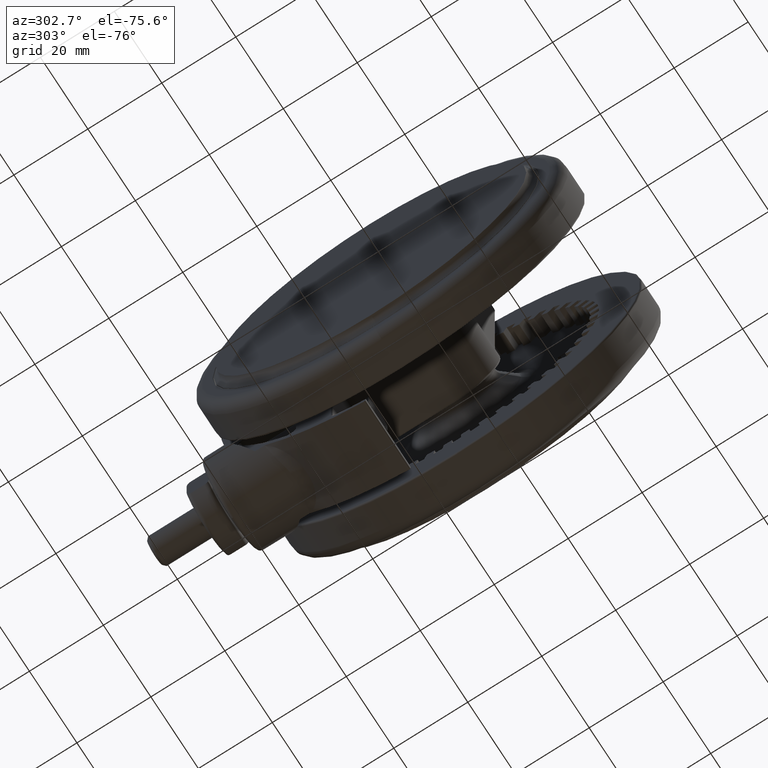
[diagram: clean part render]
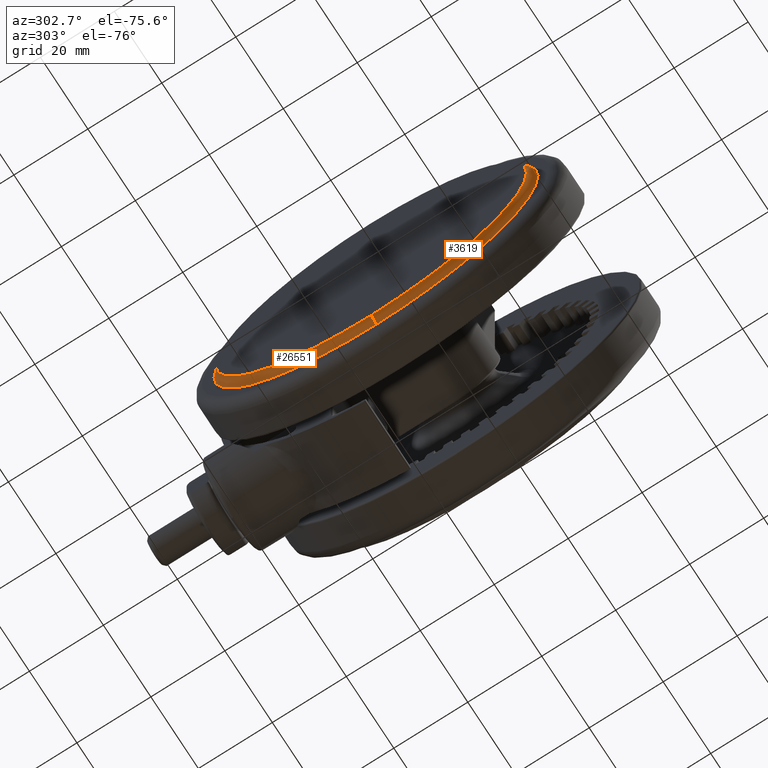
[diagram: same view with one multi-face feature highlighted, each face labeled with its STEP entity id]
A machine part, auxiliary view. The highlighted faces form ONE feature: a constant-radius fillet chain: 2 tangent blend faces with common blend radius 2.0507 mm. The faces share edges in the B-rep.
Their STEP definitions:
[1] entity #26551 (Torus):
#564 = DIRECTION ( 'NONE',  ( 0.0000000000000000000, -8.826913830670523200E-017, 1.000000000000000000 ) ) ;
#620 = FACE_OUTER_BOUND ( 'NONE', #24757, .T. ) ;
#701 = CIRCLE ( 'NONE', #28614, 43.81162395321010200 ) ;
#941 = EDGE_CURVE ( 'NONE', #15130, #20604, #17571, .T. ) ;
#2133 = EDGE_CURVE ( 'NONE', #25050, #20604, #701, .T. ) ;
#2237 = DIRECTION ( 'NONE',  ( 0.0000000000000000000, 8.826913830670523200E-017, -1.000000000000000000 ) ) ;
#2645 = DIRECTION ( 'NONE',  ( -8.142324776845440500E-034, 8.826913830670518300E-017, -1.000000000000000000 ) ) ;
#3288 = CARTESIAN_POINT ( 'NONE',  ( -41.99926869965538100, 3.583509318646617500E-015, -48.54523809523800500 ) ) ;
#3705 = EDGE_CURVE ( 'NONE', #16416, #25050, #30355, .T. ) ;
#7219 = TOROIDAL_SURFACE ( 'NONE', #23793, 44.04999999999999700, 2.050731300344620100 ) ;
#8077 = CARTESIAN_POINT ( 'NONE',  ( 4.458892139700963700E-035, 1.729889689831440000E-015, -48.54523809523800500 ) ) ;
#9049 = ORIENTED_EDGE ( 'NONE', *, *, #2133, .T. ) ;
#10323 = EDGE_CURVE ( 'NONE', #16416, #15130, #27667, .T. ) ;
#10697 = DIRECTION ( 'NONE',  ( -8.142324776845440500E-034, 8.826913830670518300E-017, -1.000000000000000000 ) ) ;
#11891 = CARTESIAN_POINT ( 'NONE',  ( 43.81162395316312800, 4.981869833394985000E-015, -46.50840827257604100 ) ) ;
#12375 = ORIENTED_EDGE ( 'NONE', *, *, #3705, .T. ) ;
#15130 = VERTEX_POINT ( 'NONE', #16324 ) ;
#15488 = DIRECTION ( 'NONE',  ( -7.833011076138272300E-017, 1.000000000000000000, 8.826913830670518300E-017 ) ) ;
#16324 = CARTESIAN_POINT ( 'NONE',  ( 41.99926869965538100, 5.019697058972520100E-015, -48.54523809523800500 ) ) ;
#16416 = VERTEX_POINT ( 'NONE', #3288 ) ;
#17189 = DIRECTION ( 'NONE',  ( -4.413456915335259200E-017, -1.000000000000000000, -8.826913830670518300E-017 ) ) ;
#17571 = CIRCLE ( 'NONE', #28721, 2.050731300344617500 ) ;
#17605 = CARTESIAN_POINT ( 'NONE',  ( 1.703041914524829200E-033, 1.550100476507669600E-015, -46.50840827257604100 ) ) ;
#18981 = ORIENTED_EDGE ( 'NONE', *, *, #941, .F. ) ;
#20110 = DIRECTION ( 'NONE',  ( -1.000000000000000000, 4.413456915335259200E-017, 0.0000000000000000000 ) ) ;
#20604 = VERTEX_POINT ( 'NONE', #11891 ) ;
#23793 = AXIS2_PLACEMENT_3D ( 'NONE', #8077, #25560, #28062 ) ;
#24757 = EDGE_LOOP ( 'NONE', ( #28089, #12375, #9049, #18981 ) ) ;
#25050 = VERTEX_POINT ( 'NONE', #29141 ) ;
#25560 = DIRECTION ( 'NONE',  ( -8.142324776845440500E-034, 8.826913830670518300E-017, -1.000000000000000000 ) ) ;
#25669 = CARTESIAN_POINT ( 'NONE',  ( 4.458892139700984000E-035, 1.729889689831440000E-015, -48.54523809523800500 ) ) ;
#25936 = AXIS2_PLACEMENT_3D ( 'NONE', #32162, #17189, #2237 ) ;
#26551 = ADVANCED_FACE ( 'NONE', ( #620 ), #7219, .F. ) ;
#27667 = CIRCLE ( 'NONE', #30400, 41.99926869965538100 ) ;
#28062 = DIRECTION ( 'NONE',  ( -1.000000000000000000, 4.413456915335259800E-017, 4.709952866388668900E-033 ) ) ;
#28089 = ORIENTED_EDGE ( 'NONE', *, *, #10323, .F. ) ;
#28170 = DIRECTION ( 'NONE',  ( 0.0000000000000000000, 1.000000000000000000, 1.652146363197072600E-016 ) ) ;
#28614 = AXIS2_PLACEMENT_3D ( 'NONE', #17605, #2645, #20110 ) ;
#28721 = AXIS2_PLACEMENT_3D ( 'NONE', #30490, #15488, #564 ) ;
#29141 = CARTESIAN_POINT ( 'NONE',  ( -43.81162395316312800, 3.483707623589226000E-015, -46.50840827257604100 ) ) ;
#30355 = CIRCLE ( 'NONE', #25936, 2.050731300344617500 ) ;
#30400 = AXIS2_PLACEMENT_3D ( 'NONE', #25669, #10697, #28170 ) ;
#30490 = CARTESIAN_POINT ( 'NONE',  ( 44.04999999999999700, 5.180331068870348100E-015, -48.54523809523800500 ) ) ;
#32162 = CARTESIAN_POINT ( 'NONE',  ( -44.04999999999999700, 3.674017461036621000E-015, -48.54523809523800500 ) ) ;
[2] entity #3619 (Torus):
#499 = AXIS2_PLACEMENT_3D ( 'NONE', #26518, #11544, #29020 ) ;
#564 = DIRECTION ( 'NONE',  ( 0.0000000000000000000, -8.826913830670523200E-017, 1.000000000000000000 ) ) ;
#695 = CIRCLE ( 'NONE', #13606, 43.81162395321010200 ) ;
#855 = ORIENTED_EDGE ( 'NONE', *, *, #941, .T. ) ;
#941 = EDGE_CURVE ( 'NONE', #15130, #20604, #17571, .T. ) ;
#2237 = DIRECTION ( 'NONE',  ( 0.0000000000000000000, 8.826913830670523200E-017, -1.000000000000000000 ) ) ;
#3288 = CARTESIAN_POINT ( 'NONE',  ( -41.99926869965538100, 3.583509318646617500E-015, -48.54523809523800500 ) ) ;
#3619 = ADVANCED_FACE ( 'NONE', ( #20957 ), #21732, .F. ) ;
#3705 = EDGE_CURVE ( 'NONE', #16416, #25050, #30355, .T. ) ;
#6706 = DIRECTION ( 'NONE',  ( -8.142324776845440500E-034, 8.826913830670518300E-017, -1.000000000000000000 ) ) ;
#11371 = EDGE_CURVE ( 'NONE', #15130, #16416, #26499, .T. ) ;
#11544 = DIRECTION ( 'NONE',  ( -8.142324776845440500E-034, 8.826913830670518300E-017, -1.000000000000000000 ) ) ;
#11891 = CARTESIAN_POINT ( 'NONE',  ( 43.81162395316312800, 4.981869833394985000E-015, -46.50840827257604100 ) ) ;
#12517 = AXIS2_PLACEMENT_3D ( 'NONE', #31636, #6706, #24192 ) ;
#13606 = AXIS2_PLACEMENT_3D ( 'NONE', #13796, #31298, #16310 ) ;
#13796 = CARTESIAN_POINT ( 'NONE',  ( 1.703041914524829200E-033, 1.550100476507669600E-015, -46.50840827257604100 ) ) ;
#15130 = VERTEX_POINT ( 'NONE', #16324 ) ;
#15488 = DIRECTION ( 'NONE',  ( -7.833011076138272300E-017, 1.000000000000000000, 8.826913830670518300E-017 ) ) ;
#16310 = DIRECTION ( 'NONE',  ( -1.000000000000000000, 4.413456915335259200E-017, 0.0000000000000000000 ) ) ;
#16324 = CARTESIAN_POINT ( 'NONE',  ( 41.99926869965538100, 5.019697058972520100E-015, -48.54523809523800500 ) ) ;
#16416 = VERTEX_POINT ( 'NONE', #3288 ) ;
#16427 = ORIENTED_EDGE ( 'NONE', *, *, #3705, .F. ) ;
#17132 = EDGE_LOOP ( 'NONE', ( #18921, #855, #23638, #16427 ) ) ;
#17189 = DIRECTION ( 'NONE',  ( -4.413456915335259200E-017, -1.000000000000000000, -8.826913830670518300E-017 ) ) ;
#17571 = CIRCLE ( 'NONE', #28721, 2.050731300344617500 ) ;
#18921 = ORIENTED_EDGE ( 'NONE', *, *, #11371, .F. ) ;
#20604 = VERTEX_POINT ( 'NONE', #11891 ) ;
#20957 = FACE_OUTER_BOUND ( 'NONE', #17132, .T. ) ;
#21732 = TOROIDAL_SURFACE ( 'NONE', #12517, 44.04999999999999700, 2.050731300344620100 ) ;
#23638 = ORIENTED_EDGE ( 'NONE', *, *, #32335, .T. ) ;
#24192 = DIRECTION ( 'NONE',  ( -1.000000000000000000, 4.413456915335259800E-017, 4.709952866388668900E-033 ) ) ;
#25050 = VERTEX_POINT ( 'NONE', #29141 ) ;
#25936 = AXIS2_PLACEMENT_3D ( 'NONE', #32162, #17189, #2237 ) ;
#26499 = CIRCLE ( 'NONE', #499, 41.99926869965538100 ) ;
#26518 = CARTESIAN_POINT ( 'NONE',  ( 4.458892139700984000E-035, 1.729889689831440000E-015, -48.54523809523800500 ) ) ;
#28721 = AXIS2_PLACEMENT_3D ( 'NONE', #30490, #15488, #564 ) ;
#29020 = DIRECTION ( 'NONE',  ( 0.0000000000000000000, 1.000000000000000000, 1.652146363197072600E-016 ) ) ;
#29141 = CARTESIAN_POINT ( 'NONE',  ( -43.81162395316312800, 3.483707623589226000E-015, -46.50840827257604100 ) ) ;
#30355 = CIRCLE ( 'NONE', #25936, 2.050731300344617500 ) ;
#30490 = CARTESIAN_POINT ( 'NONE',  ( 44.04999999999999700, 5.180331068870348100E-015, -48.54523809523800500 ) ) ;
#31298 = DIRECTION ( 'NONE',  ( -8.142324776845440500E-034, 8.826913830670518300E-017, -1.000000000000000000 ) ) ;
#31636 = CARTESIAN_POINT ( 'NONE',  ( 4.458892139700963700E-035, 1.729889689831440000E-015, -48.54523809523800500 ) ) ;
#32162 = CARTESIAN_POINT ( 'NONE',  ( -44.04999999999999700, 3.674017461036621000E-015, -48.54523809523800500 ) ) ;
#32335 = EDGE_CURVE ( 'NONE', #20604, #25050, #695, .T. ) ;